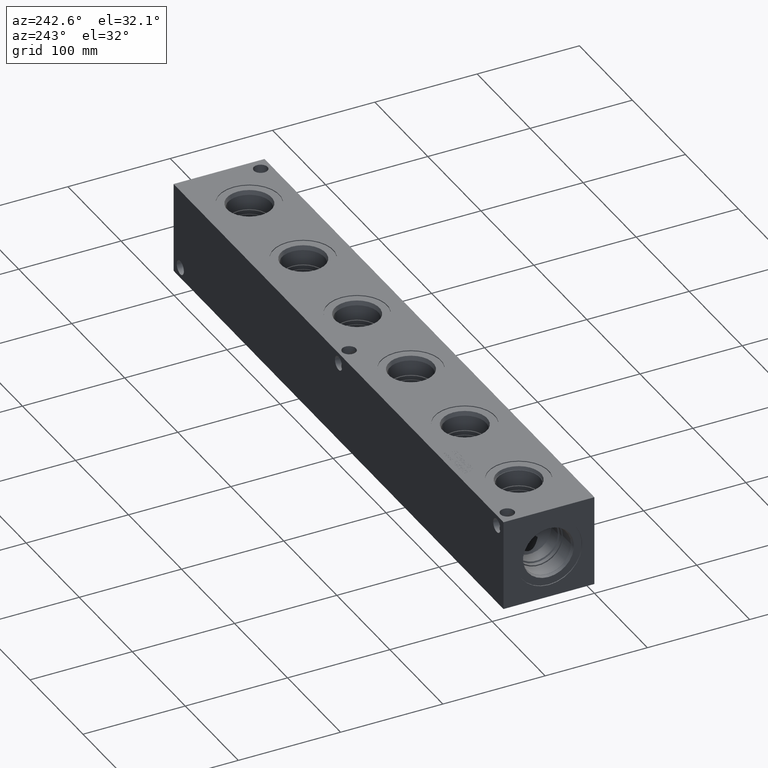
[diagram: clean part render]
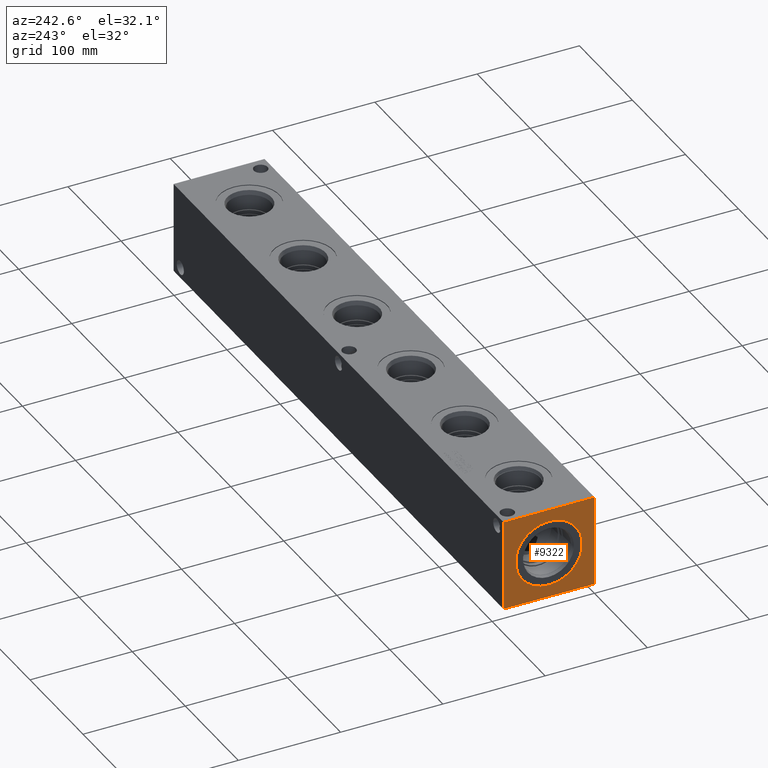
[diagram: same view with one face highlighted and labeled with its STEP entity id]
A machine part, auxiliary view. The second image highlights one B-rep face of the part: STEP entity #9322.
In plain terms, the highlighted planar face has unit normal (-1, 0, 0).
Its self-contained STEP definition (entity closure, byte-faithful):
#422=CIRCLE('',#9979,32.5628);
#423=CIRCLE('',#9980,32.5628);
#498=FACE_BOUND('',#1903,.T.);
#1349=FACE_OUTER_BOUND('',#1902,.T.);
#1902=EDGE_LOOP('',(#8244,#8245,#8246,#8247));
#1903=EDGE_LOOP('',(#8248,#8249));
#2192=LINE('',#14382,#2978);
#2703=LINE('',#16406,#3489);
#2704=LINE('',#16407,#3490);
#2705=LINE('',#16408,#3491);
#2978=VECTOR('',#10398,10.);
#3489=VECTOR('',#12083,10.);
#3490=VECTOR('',#12084,10.);
#3491=VECTOR('',#12085,10.);
#3809=VERTEX_POINT('',#14375);
#3812=VERTEX_POINT('',#14380);
#4354=VERTEX_POINT('',#16375);
#4355=VERTEX_POINT('',#16376);
#4364=VERTEX_POINT('',#16404);
#4365=VERTEX_POINT('',#16405);
#4839=EDGE_CURVE('',#3812,#3809,#2192,.T.);
#5655=EDGE_CURVE('',#4354,#4355,#422,.T.);
#5656=EDGE_CURVE('',#4355,#4354,#423,.T.);
#5669=EDGE_CURVE('',#4364,#4365,#2703,.T.);
#5670=EDGE_CURVE('',#4365,#3809,#2704,.T.);
#5671=EDGE_CURVE('',#4364,#3812,#2705,.T.);
#8244=ORIENTED_EDGE('',*,*,#5669,.T.);
#8245=ORIENTED_EDGE('',*,*,#5670,.T.);
#8246=ORIENTED_EDGE('',*,*,#4839,.F.);
#8247=ORIENTED_EDGE('',*,*,#5671,.F.);
#8248=ORIENTED_EDGE('',*,*,#5655,.T.);
#8249=ORIENTED_EDGE('',*,*,#5656,.T.);
#8528=PLANE('',#9993);
#9322=ADVANCED_FACE('',(#1349,#498),#8528,.T.);
#9979=AXIS2_PLACEMENT_3D('',#16377,#12049,#12050);
#9980=AXIS2_PLACEMENT_3D('',#16378,#12051,#12052);
#9993=AXIS2_PLACEMENT_3D('',#16403,#12081,#12082);
#10398=DIRECTION('',(0.,-1.,0.));
#12049=DIRECTION('center_axis',(1.,0.,0.));
#12050=DIRECTION('ref_axis',(0.,0.,1.));
#12051=DIRECTION('center_axis',(1.,0.,0.));
#12052=DIRECTION('ref_axis',(0.,0.,1.));
#12081=DIRECTION('center_axis',(-1.,0.,0.));
#12082=DIRECTION('ref_axis',(0.,-1.,0.));
#12083=DIRECTION('',(0.,-1.,0.));
#12084=DIRECTION('',(0.,0.,1.));
#12085=DIRECTION('',(0.,0.,1.));
#14375=CARTESIAN_POINT('',(0.,0.,88.9));
#14380=CARTESIAN_POINT('',(0.,88.9,88.9));
#14382=CARTESIAN_POINT('',(0.,88.9,88.9));
#16375=CARTESIAN_POINT('',(0.,44.45,77.0128));
#16376=CARTESIAN_POINT('',(0.,44.45,11.8872));
#16377=CARTESIAN_POINT('Origin',(0.,44.45,44.45));
#16378=CARTESIAN_POINT('Origin',(0.,44.45,44.45));
#16403=CARTESIAN_POINT('Origin',(0.,88.9,0.));
#16404=CARTESIAN_POINT('',(0.,88.9,0.));
#16405=CARTESIAN_POINT('',(0.,0.,0.));
#16406=CARTESIAN_POINT('',(0.,88.9,0.));
#16407=CARTESIAN_POINT('',(0.,0.,0.));
#16408=CARTESIAN_POINT('',(0.,88.9,0.));